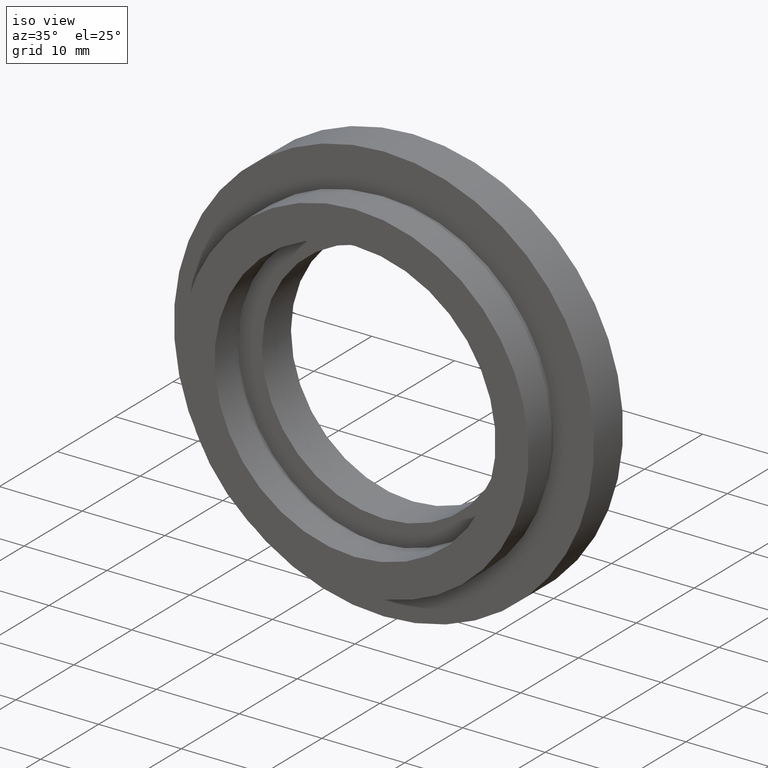
[diagram: clean part render]
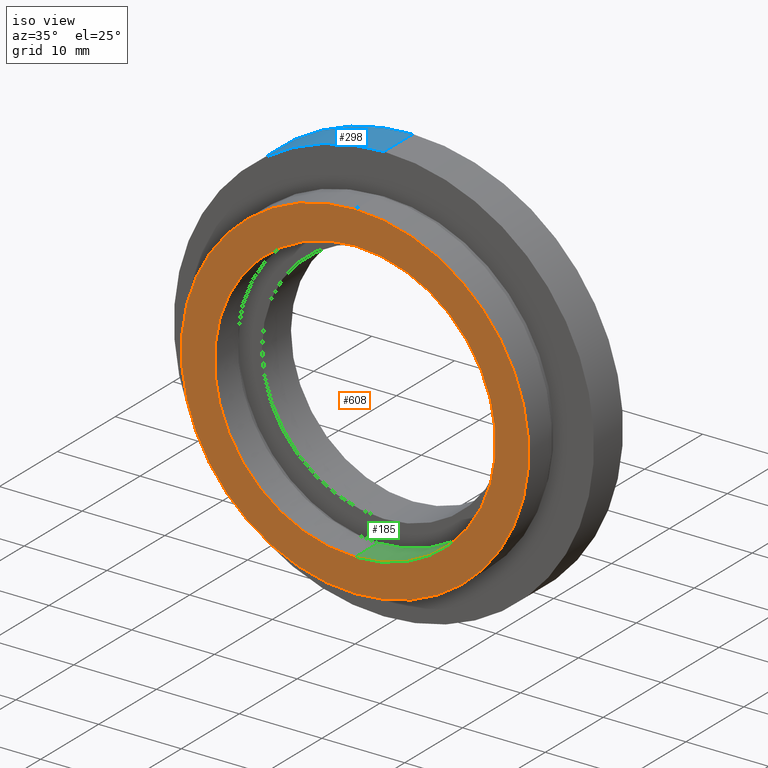
[diagram: same view with three faces highlighted in distinct colors, each labeled with its STEP entity id]
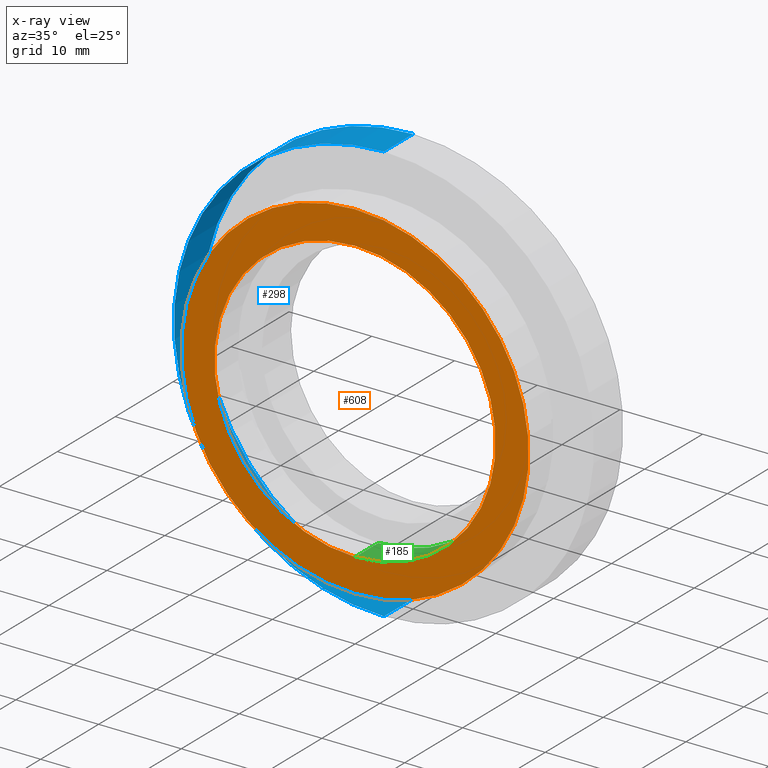
[diagram: x-ray of the same camera — body ghosted, the three highlighted faces saturated]
A machine part, iso view with three faces highlighted in distinct colors.
The next image is the same camera in x-ray (body ghosted, the three faces saturated) — at least one of them is partly hidden behind the body in this view.
Their STEP definitions:

[orange] entity #608 — the highlighted planar face has unit normal (-0, 1, 0).
#25 = FACE_BOUND ( 'NONE', #158, .T. ) ;
#29 = VERTEX_POINT ( 'NONE', #432 ) ;
#37 = CIRCLE ( 'NONE', #132, 17.00000000000000000 ) ;
#48 = EDGE_LOOP ( 'NONE', ( #481, #320 ) ) ;
#58 = DIRECTION ( 'NONE',  ( 0.0000000000000000000, 0.0000000000000000000, 1.000000000000000000 ) ) ;
#59 = CARTESIAN_POINT ( 'NONE',  ( 0.0000000000000000000, 0.0000000000000000000, 0.0000000000000000000 ) ) ;
#64 = DIRECTION ( 'NONE',  ( 0.0000000000000000000, 0.0000000000000000000, 1.000000000000000000 ) ) ;
#65 = CIRCLE ( 'NONE', #136, 17.00000000000000000 ) ;
#66 = CARTESIAN_POINT ( 'NONE',  ( 21.00000000000000000, -4.286263797015735600E-016, 0.0000000000000000000 ) ) ;
#83 = DIRECTION ( 'NONE',  ( -0.0000000000000000000, 1.000000000000000000, -0.0000000000000000000 ) ) ;
#103 = EDGE_CURVE ( 'NONE', #555, #360, #612, .T. ) ;
#108 = EDGE_CURVE ( 'NONE', #400, #29, #37, .T. ) ;
#132 = AXIS2_PLACEMENT_3D ( 'NONE', #193, #196, #195 ) ;
#136 = AXIS2_PLACEMENT_3D ( 'NONE', #59, #83, #64 ) ;
#153 = DIRECTION ( 'NONE',  ( -0.0000000000000000000, 1.000000000000000000, 0.0000000000000000000 ) ) ;
#158 = EDGE_LOOP ( 'NONE', ( #558, #623 ) ) ;
#172 = AXIS2_PLACEMENT_3D ( 'NONE', #250, #266, #264 ) ;
#193 = CARTESIAN_POINT ( 'NONE',  ( 0.0000000000000000000, 0.0000000000000000000, 0.0000000000000000000 ) ) ;
#195 = DIRECTION ( 'NONE',  ( 0.0000000000000000000, 0.0000000000000000000, 1.000000000000000000 ) ) ;
#196 = DIRECTION ( 'NONE',  ( -0.0000000000000000000, 1.000000000000000000, -0.0000000000000000000 ) ) ;
#250 = CARTESIAN_POINT ( 'NONE',  ( 0.0000000000000000000, 0.0000000000000000000, 0.0000000000000000000 ) ) ;
#264 = DIRECTION ( 'NONE',  ( 0.0000000000000000000, 0.0000000000000000000, 1.000000000000000000 ) ) ;
#265 = CIRCLE ( 'NONE', #478, 21.00000000000000000 ) ;
#266 = DIRECTION ( 'NONE',  ( -0.0000000000000000000, 1.000000000000000000, -0.0000000000000000000 ) ) ;
#301 = EDGE_CURVE ( 'NONE', #360, #555, #265, .T. ) ;
#320 = ORIENTED_EDGE ( 'NONE', *, *, #103, .F. ) ;
#360 = VERTEX_POINT ( 'NONE', #606 ) ;
#400 = VERTEX_POINT ( 'NONE', #472 ) ;
#415 = CARTESIAN_POINT ( 'NONE',  ( 2.571758278209441700E-015, 0.0000000000000000000, -21.00000000000000000 ) ) ;
#432 = CARTESIAN_POINT ( 'NONE',  ( 2.081899558550500300E-015, 0.0000000000000000000, -17.00000000000000000 ) ) ;
#439 = FACE_OUTER_BOUND ( 'NONE', #48, .T. ) ;
#462 = EDGE_CURVE ( 'NONE', #29, #400, #65, .T. ) ;
#472 = CARTESIAN_POINT ( 'NONE',  ( 0.0000000000000000000, 0.0000000000000000000, 17.00000000000000000 ) ) ;
#478 = AXIS2_PLACEMENT_3D ( 'NONE', #529, #526, #542 ) ;
#481 = ORIENTED_EDGE ( 'NONE', *, *, #301, .F. ) ;
#505 = AXIS2_PLACEMENT_3D ( 'NONE', #66, #153, #58 ) ;
#526 = DIRECTION ( 'NONE',  ( -0.0000000000000000000, 1.000000000000000000, -0.0000000000000000000 ) ) ;
#529 = CARTESIAN_POINT ( 'NONE',  ( 0.0000000000000000000, 0.0000000000000000000, 0.0000000000000000000 ) ) ;
#542 = DIRECTION ( 'NONE',  ( 0.0000000000000000000, 0.0000000000000000000, 1.000000000000000000 ) ) ;
#555 = VERTEX_POINT ( 'NONE', #415 ) ;
#558 = ORIENTED_EDGE ( 'NONE', *, *, #108, .T. ) ;
#606 = CARTESIAN_POINT ( 'NONE',  ( 0.0000000000000000000, 0.0000000000000000000, 21.00000000000000000 ) ) ;
#608 = ADVANCED_FACE ( 'NONE', ( #439, #25 ), #622, .F. ) ;
#612 = CIRCLE ( 'NONE', #172, 21.00000000000000000 ) ;
#622 = PLANE ( 'NONE',  #505 ) ;
#623 = ORIENTED_EDGE ( 'NONE', *, *, #462, .T. ) ;

[blue] entity #298 — the highlighted cylindrical surface (partial cylindrical patch) has radius 25.4 mm, axis along (-0, 1, -0).
#3 = DIRECTION ( 'NONE',  ( -0.0000000000000000000, 1.000000000000000000, -0.0000000000000000000 ) ) ;
#7 = EDGE_CURVE ( 'NONE', #89, #113, #351, .T. ) ;
#34 = CARTESIAN_POINT ( 'NONE',  ( 0.0000000000000000000, 9.999999999999998200, 0.0000000000000000000 ) ) ;
#84 = VECTOR ( 'NONE', #163, 1000.000000000000000 ) ;
#89 = VERTEX_POINT ( 'NONE', #246 ) ;
#97 = DIRECTION ( 'NONE',  ( 0.0000000000000000000, 0.0000000000000000000, 1.000000000000000000 ) ) ;
#111 = EDGE_LOOP ( 'NONE', ( #304, #461, #557, #280 ) ) ;
#113 = VERTEX_POINT ( 'NONE', #325 ) ;
#148 = CARTESIAN_POINT ( 'NONE',  ( 0.0000000000000000000, 13.74468085106383300, 25.39999999999999900 ) ) ;
#163 = DIRECTION ( 'NONE',  ( -0.0000000000000000000, 1.000000000000000000, -0.0000000000000000000 ) ) ;
#177 = VERTEX_POINT ( 'NONE', #270 ) ;
#211 = AXIS2_PLACEMENT_3D ( 'NONE', #330, #447, #242 ) ;
#221 = AXIS2_PLACEMENT_3D ( 'NONE', #34, #3, #97 ) ;
#242 = DIRECTION ( 'NONE',  ( 0.0000000000000000000, 0.0000000000000000000, 1.000000000000000000 ) ) ;
#246 = CARTESIAN_POINT ( 'NONE',  ( 3.110602869834276900E-015, 5.000000000000000900, -25.39999999999999900 ) ) ;
#270 = CARTESIAN_POINT ( 'NONE',  ( 0.0000000000000000000, 9.999999999999998200, 25.39999999999999900 ) ) ;
#271 = CYLINDRICAL_SURFACE ( 'NONE', #507, 25.39999999999999900 ) ;
#280 = ORIENTED_EDGE ( 'NONE', *, *, #593, .F. ) ;
#298 = ADVANCED_FACE ( 'NONE', ( #396 ), #271, .T. ) ;
#304 = ORIENTED_EDGE ( 'NONE', *, *, #363, .F. ) ;
#317 = LINE ( 'NONE', #148, #84 ) ;
#325 = CARTESIAN_POINT ( 'NONE',  ( 0.0000000000000000000, 5.000000000000000900, 25.39999999999999900 ) ) ;
#326 = VECTOR ( 'NONE', #578, 1000.000000000000000 ) ;
#330 = CARTESIAN_POINT ( 'NONE',  ( 0.0000000000000000000, 5.000000000000000900, 0.0000000000000000000 ) ) ;
#351 = CIRCLE ( 'NONE', #211, 25.39999999999999900 ) ;
#363 = EDGE_CURVE ( 'NONE', #89, #547, #501, .T. ) ;
#396 = FACE_OUTER_BOUND ( 'NONE', #111, .T. ) ;
#427 = EDGE_CURVE ( 'NONE', #113, #177, #317, .T. ) ;
#447 = DIRECTION ( 'NONE',  ( -0.0000000000000000000, 1.000000000000000000, -0.0000000000000000000 ) ) ;
#461 = ORIENTED_EDGE ( 'NONE', *, *, #7, .T. ) ;
#485 = CIRCLE ( 'NONE', #221, 25.39999999999999900 ) ;
#493 = CARTESIAN_POINT ( 'NONE',  ( 0.0000000000000000000, 13.74468085106383300, 0.0000000000000000000 ) ) ;
#501 = LINE ( 'NONE', #545, #326 ) ;
#507 = AXIS2_PLACEMENT_3D ( 'NONE', #493, #595, #586 ) ;
#545 = CARTESIAN_POINT ( 'NONE',  ( 3.110602869834276900E-015, 13.74468085106383300, -25.39999999999999900 ) ) ;
#547 = VERTEX_POINT ( 'NONE', #614 ) ;
#557 = ORIENTED_EDGE ( 'NONE', *, *, #427, .T. ) ;
#578 = DIRECTION ( 'NONE',  ( -0.0000000000000000000, 1.000000000000000000, -0.0000000000000000000 ) ) ;
#586 = DIRECTION ( 'NONE',  ( 0.0000000000000000000, 0.0000000000000000000, 1.000000000000000000 ) ) ;
#593 = EDGE_CURVE ( 'NONE', #547, #177, #485, .T. ) ;
#595 = DIRECTION ( 'NONE',  ( -0.0000000000000000000, 1.000000000000000000, -0.0000000000000000000 ) ) ;
#614 = CARTESIAN_POINT ( 'NONE',  ( 3.110602869834276900E-015, 9.999999999999998200, -25.39999999999999900 ) ) ;

[green] entity #185 — the highlighted cylindrical surface (partial cylindrical patch) has radius 17 mm, axis along (-0, 1, -0).
#13 = CARTESIAN_POINT ( 'NONE',  ( 2.081899558550500300E-015, 13.74468085106383300, -17.00000000000000000 ) ) ;
#29 = VERTEX_POINT ( 'NONE', #432 ) ;
#33 = CYLINDRICAL_SURFACE ( 'NONE', #322, 17.00000000000000000 ) ;
#35 = EDGE_CURVE ( 'NONE', #400, #95, #331, .T. ) ;
#37 = CIRCLE ( 'NONE', #132, 17.00000000000000000 ) ;
#46 = LINE ( 'NONE', #13, #388 ) ;
#79 = VERTEX_POINT ( 'NONE', #334 ) ;
#82 = DIRECTION ( 'NONE',  ( -0.0000000000000000000, 1.000000000000000000, -0.0000000000000000000 ) ) ;
#95 = VERTEX_POINT ( 'NONE', #314 ) ;
#96 = ORIENTED_EDGE ( 'NONE', *, *, #108, .F. ) ;
#108 = EDGE_CURVE ( 'NONE', #400, #29, #37, .T. ) ;
#132 = AXIS2_PLACEMENT_3D ( 'NONE', #193, #196, #195 ) ;
#170 = ORIENTED_EDGE ( 'NONE', *, *, #521, .F. ) ;
#174 = EDGE_CURVE ( 'NONE', #95, #79, #443, .T. ) ;
#185 = ADVANCED_FACE ( 'NONE', ( #429 ), #33, .F. ) ;
#193 = CARTESIAN_POINT ( 'NONE',  ( 0.0000000000000000000, 0.0000000000000000000, 0.0000000000000000000 ) ) ;
#195 = DIRECTION ( 'NONE',  ( 0.0000000000000000000, 0.0000000000000000000, 1.000000000000000000 ) ) ;
#196 = DIRECTION ( 'NONE',  ( -0.0000000000000000000, 1.000000000000000000, -0.0000000000000000000 ) ) ;
#206 = EDGE_LOOP ( 'NONE', ( #170, #96, #219, #220 ) ) ;
#219 = ORIENTED_EDGE ( 'NONE', *, *, #35, .T. ) ;
#220 = ORIENTED_EDGE ( 'NONE', *, *, #174, .T. ) ;
#252 = DIRECTION ( 'NONE',  ( 0.0000000000000000000, 0.0000000000000000000, 1.000000000000000000 ) ) ;
#293 = DIRECTION ( 'NONE',  ( -0.0000000000000000000, 1.000000000000000000, -0.0000000000000000000 ) ) ;
#307 = DIRECTION ( 'NONE',  ( -0.0000000000000000000, 1.000000000000000000, -0.0000000000000000000 ) ) ;
#314 = CARTESIAN_POINT ( 'NONE',  ( 0.0000000000000000000, 4.000000000000000000, 17.00000000000000000 ) ) ;
#322 = AXIS2_PLACEMENT_3D ( 'NONE', #438, #408, #528 ) ;
#323 = CARTESIAN_POINT ( 'NONE',  ( 0.0000000000000000000, 4.000000000000000000, 0.0000000000000000000 ) ) ;
#331 = LINE ( 'NONE', #454, #393 ) ;
#334 = CARTESIAN_POINT ( 'NONE',  ( 2.081899558550500300E-015, 4.000000000000000000, -17.00000000000000000 ) ) ;
#388 = VECTOR ( 'NONE', #82, 1000.000000000000000 ) ;
#390 = AXIS2_PLACEMENT_3D ( 'NONE', #323, #307, #252 ) ;
#393 = VECTOR ( 'NONE', #293, 1000.000000000000000 ) ;
#400 = VERTEX_POINT ( 'NONE', #472 ) ;
#408 = DIRECTION ( 'NONE',  ( -0.0000000000000000000, 1.000000000000000000, -0.0000000000000000000 ) ) ;
#429 = FACE_OUTER_BOUND ( 'NONE', #206, .T. ) ;
#432 = CARTESIAN_POINT ( 'NONE',  ( 2.081899558550500300E-015, 0.0000000000000000000, -17.00000000000000000 ) ) ;
#438 = CARTESIAN_POINT ( 'NONE',  ( 0.0000000000000000000, 13.74468085106383300, 0.0000000000000000000 ) ) ;
#443 = CIRCLE ( 'NONE', #390, 17.00000000000000000 ) ;
#454 = CARTESIAN_POINT ( 'NONE',  ( 0.0000000000000000000, 13.74468085106383300, 17.00000000000000000 ) ) ;
#472 = CARTESIAN_POINT ( 'NONE',  ( 0.0000000000000000000, 0.0000000000000000000, 17.00000000000000000 ) ) ;
#521 = EDGE_CURVE ( 'NONE', #29, #79, #46, .T. ) ;
#528 = DIRECTION ( 'NONE',  ( 0.0000000000000000000, 0.0000000000000000000, 1.000000000000000000 ) ) ;